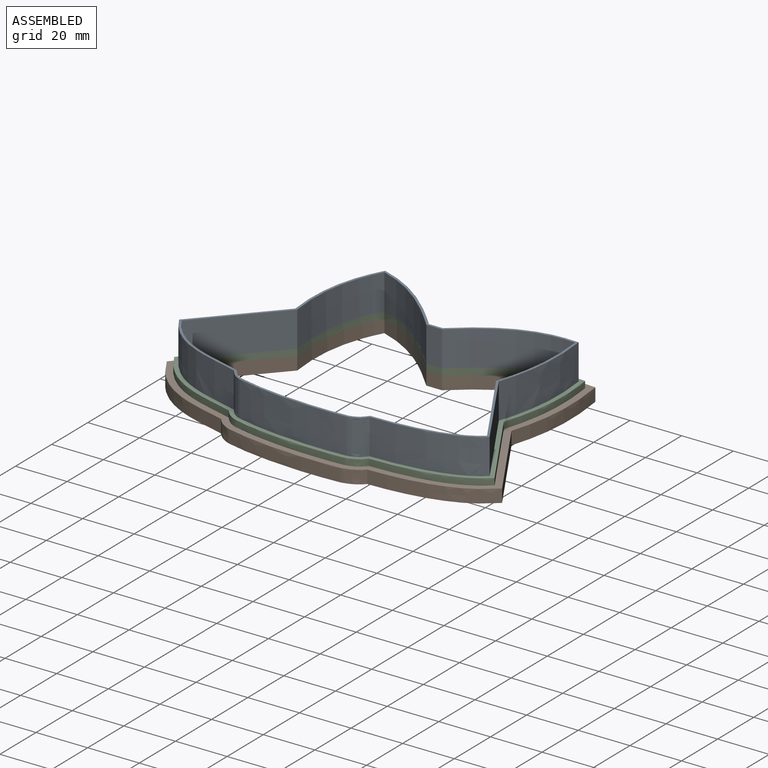
[diagram: assembled view]
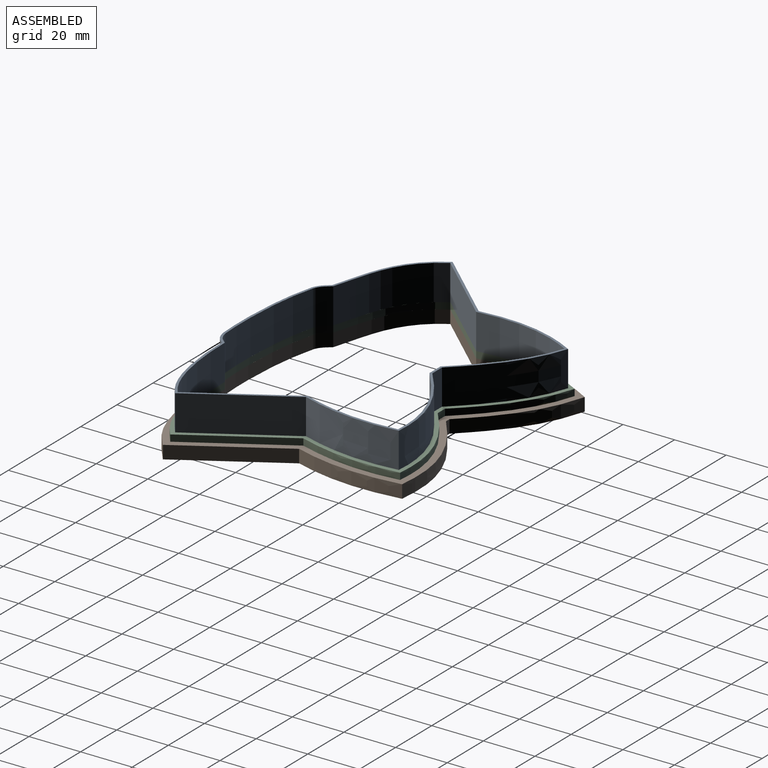
[diagram: assembled view, second angle]
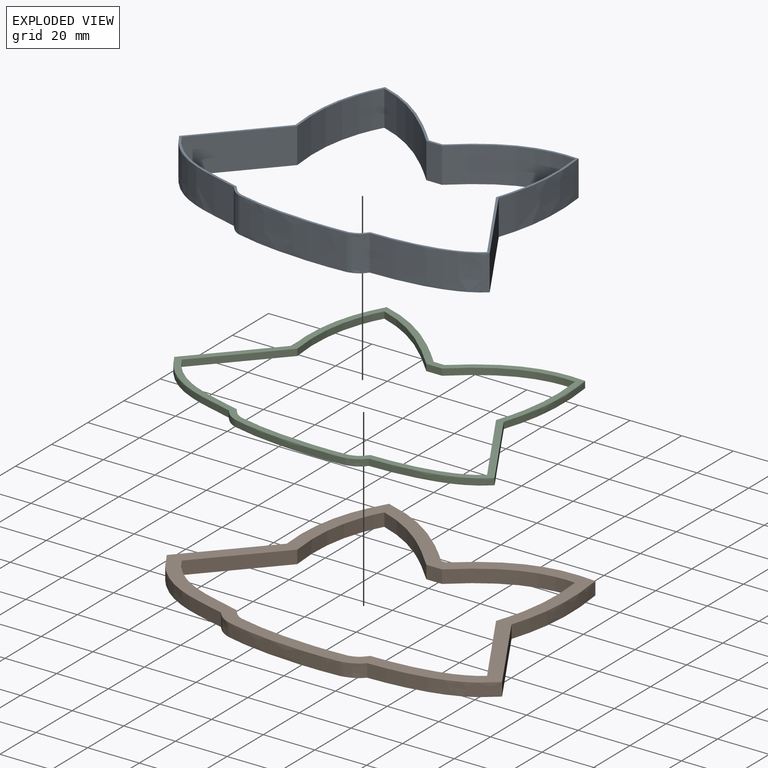
[diagram: exploded view]
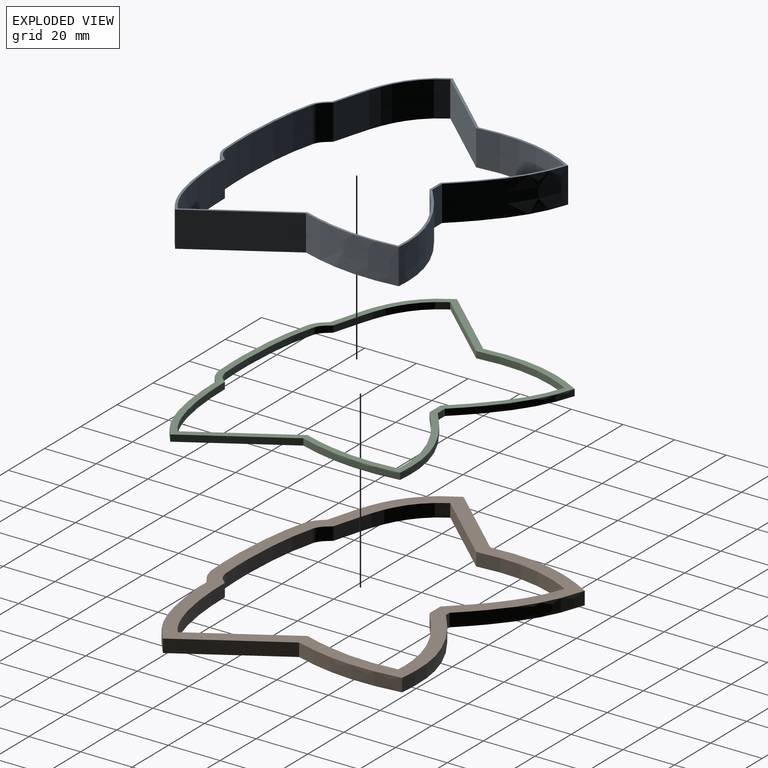
[diagram: exploded view, second angle]
ASSEMBLY  parts=3 mates=2
PART A: 26 faces, bbox 137.5x103.3x20 mm
  f0: plane 137.54x103.3mm, normal (0,0,1), area 350.4mm2, adj f2,f3,f4,f5,f6,f7,f8,f9
  f1: plane 137.54x103.3mm, normal (0,0,-1), area 350.4mm2, adj f2,f3,f4,f5,f6,f7,f8,f9
  f2: extruded ~39.59x13.72mm, area 561.6mm2, adj f0,f1,f3,f13
  f3: extruded ~27.92x25.48mm, area 518.5mm2, adj f0,f1,f2,f4
  f4: extruded ~36.12x21.31mm, area 595.2mm2, adj f0,f1,f3,f5
  f5: extruded ~13.72x5.36mm, area 96.8mm2, adj f0,f1,f4,f6
  f6: extruded ~44.06x13.72mm, area 608.6mm2, adj f0,f1,f5,f7
  f7: extruded ~13.72x6.01mm, area 100.6mm2, adj f0,f1,f6,f8
  f8: extruded ~39.69x13.72mm, area 571.1mm2, adj f0,f1,f7,f9
  f9: plane 35.69x21.48mm, normal (0.86,0.52,0), area 571.4mm2, adj f0,f1,f8,f10
  f10: extruded ~38.62x13.72mm, area 537.3mm2, adj f0,f1,f9,f11
  f11: extruded ~41.42x16.2mm, area 627.8mm2, adj f0,f1,f10,f12
  f12: plane 13.72x5.35mm, normal (0,1,0), area 73.3mm2, adj f0,f1,f11,f13
  f13: extruded ~34.33x24.8mm, area 588.2mm2, adj f0,f1,f2,f12
  f14: extruded ~38.82x13.72mm, area 549.7mm2, adj f0,f1,f15,f25
  f15: extruded ~27.75x25.32mm, area 515.2mm2, adj f0,f1,f14,f16
  f16: extruded ~35.56x20.43mm, area 581mm2, adj f0,f1,f15,f17
  f17: extruded ~13.72x5.07mm, area 93mm2, adj f0,f1,f16,f18
  f18: extruded ~43.67x13.72mm, area 603.2mm2, adj f0,f1,f17,f19
  f19: extruded ~13.72x5.73mm, area 97.6mm2, adj f0,f1,f18,f20
  f20: extruded ~38.94x13.72mm, area 557.5mm2, adj f0,f1,f19,f21
  f21: plane 35.39x21.3mm, normal (-0.86,-0.52,0), area 566.5mm2, adj f0,f1,f20,f22
  f22: extruded ~37.9x13.72mm, area 527.6mm2, adj f0,f1,f21,f23
  f23: extruded ~40.29x16.2mm, area 612.6mm2, adj f0,f1,f22,f24
  f24: plane 13.72x6.07mm, normal (0,-1,0), area 83.2mm2, adj f0,f1,f23,f25
  f25: extruded ~33.51x24.61mm, area 577.1mm2, adj f0,f1,f14,f24
PART B: 26 faces, bbox 145.6x110x8.8 mm
  f0: plane 145.63x109.99mm, normal (0,0,1), area 2077.6mm2, adj f2,f3,f4,f5,f6,f7,f8,f9
  f1: plane 145.63x109.99mm, normal (0,0,-1), area 2077.6mm2, adj f2,f3,f4,f5,f6,f7,f8,f9
  f2: extruded ~43.18x9.86mm, area 228.9mm2, adj f0,f1,f3,f13
  f3: extruded ~28.76x26.29mm, area 197.9mm2, adj f0,f1,f2,f4
  f4: extruded ~38.81x25.53mm, area 245.3mm2, adj f0,f1,f3,f5
  f5: extruded ~6.65x5.08mm, area 42.2mm2, adj f0,f1,f4,f6
  f6: extruded ~45.9x5.08mm, area 234.9mm2, adj f0,f1,f5,f7
  f7: extruded ~7.34x5.08mm, area 43mm2, adj f0,f1,f6,f8
  f8: extruded ~43.18x12.94mm, area 234.2mm2, adj f0,f1,f7,f9
  f9: plane 37.14x22.35mm, normal (0.86,0.52,0), area 220.2mm2, adj f0,f1,f8,f10
  f10: extruded ~42.01x5.08mm, area 216.1mm2, adj f0,f1,f9,f11
  f11: extruded ~46.71x16.2mm, area 259mm2, adj f0,f1,f10,f12
  f12: plane 5.08x1.98mm, normal (0,1,0), area 10mm2, adj f0,f1,f11,f13
  f13: extruded ~38.17x25.65mm, area 237.5mm2, adj f0,f1,f2,f12
  f14: extruded ~38.82x7.23mm, area 203.6mm2, adj f0,f1,f15,f25
  f15: extruded ~27.75x25.32mm, area 190.8mm2, adj f0,f1,f14,f16
  f16: extruded ~35.56x20.43mm, area 215.2mm2, adj f0,f1,f15,f17
  f17: extruded ~5.08x5.07mm, area 34.4mm2, adj f0,f1,f16,f18
  f18: extruded ~43.67x5.08mm, area 223.4mm2, adj f0,f1,f17,f19
  f19: extruded ~5.73x5.08mm, area 36.1mm2, adj f0,f1,f18,f20
  f20: extruded ~38.94x9mm, area 206.5mm2, adj f0,f1,f19,f21
  f21: plane 35.39x21.3mm, normal (-0.86,-0.52,0), area 209.8mm2, adj f0,f1,f20,f22
  f22: extruded ~37.9x5.08mm, area 195.4mm2, adj f0,f1,f21,f23
  f23: extruded ~40.29x16.2mm, area 226.9mm2, adj f0,f1,f22,f24
  f24: plane 6.07x5.08mm, normal (0,-1,0), area 30.8mm2, adj f0,f1,f23,f25
  f25: extruded ~33.51x24.61mm, area 213.7mm2, adj f0,f1,f14,f24
PART C: 26 faces, bbox 136.7x101.9x3.8 mm
  f0: plane 136.74x101.94mm, normal (0,0,1), area 1016.1mm2, adj f2,f3,f4,f5,f6,f7,f8,f9
  f1: plane 136.74x101.94mm, normal (0,0,-1), area 1016.1mm2, adj f2,f3,f4,f5,f6,f7,f8,f9
  f2: extruded ~41.01x8.55mm, area 108.1mm2, adj f0,f1,f3,f13
  f3: extruded ~28.25x25.8mm, area 97.2mm2, adj f0,f1,f2,f4
  f4: extruded ~37.17x22.97mm, area 115.1mm2, adj f0,f1,f3,f5
  f5: extruded ~5.88x4.56mm, area 19.2mm2, adj f0,f1,f4,f6
  f6: extruded ~44.79x3.84mm, area 114.6mm2, adj f0,f1,f5,f7
  f7: extruded ~6.54x3.84mm, area 19.8mm2, adj f0,f1,f6,f8
  f8: extruded ~41.06x10.97mm, area 110.1mm2, adj f0,f1,f7,f9
  f9: plane 36.26x21.82mm, normal (0.86,0.52,0), area 107.5mm2, adj f0,f1,f8,f10
  f10: extruded ~39.96x4.48mm, area 102.9mm2, adj f0,f1,f9,f11
  f11: extruded ~43.51x16.2mm, area 121.5mm2, adj f0,f1,f10,f12
  f12: plane 4.01x2.54mm, normal (0,1,0), area 10.2mm2, adj f0,f1,f11,f13
  f13: extruded ~35.84x25.13mm, area 112.8mm2, adj f0,f1,f2,f12
  f14: extruded ~38.82x7.23mm, area 101.8mm2, adj f0,f1,f15,f25
  f15: extruded ~27.75x25.32mm, area 95.4mm2, adj f0,f1,f14,f16
  f16: extruded ~35.56x20.43mm, area 107.6mm2, adj f0,f1,f15,f17
  f17: extruded ~5.07x4.3mm, area 17.2mm2, adj f0,f1,f16,f18
  f18: extruded ~43.67x3.74mm, area 111.7mm2, adj f0,f1,f17,f19
  f19: extruded ~5.73x3.86mm, area 18.1mm2, adj f0,f1,f18,f20
  f20: extruded ~38.94x9mm, area 103.2mm2, adj f0,f1,f19,f21
  f21: plane 35.39x21.3mm, normal (-0.86,-0.52,0), area 104.9mm2, adj f0,f1,f20,f22
  f22: extruded ~37.9x4.72mm, area 97.7mm2, adj f0,f1,f21,f23
  f23: extruded ~40.29x16.2mm, area 113.4mm2, adj f0,f1,f22,f24
  f24: plane 6.07x2.54mm, normal (0,-1,0), area 15.4mm2, adj f0,f1,f23,f25
  f25: extruded ~33.51x24.61mm, area 106.9mm2, adj f0,f1,f14,f24
PLACE A t=(132.03,1.57,7.62)mm
PLACE B at identity
PLACE C t=(286.47,-29.76,5.08)mm
MATE fastened A.f1 <-> C.f0  axis (0,0,1) through (98.72,6.32,7.62)mm
MATE fastened C.f1 <-> B.f0  axis (0,0,1) through (98.72,6.32,5.08)mm
